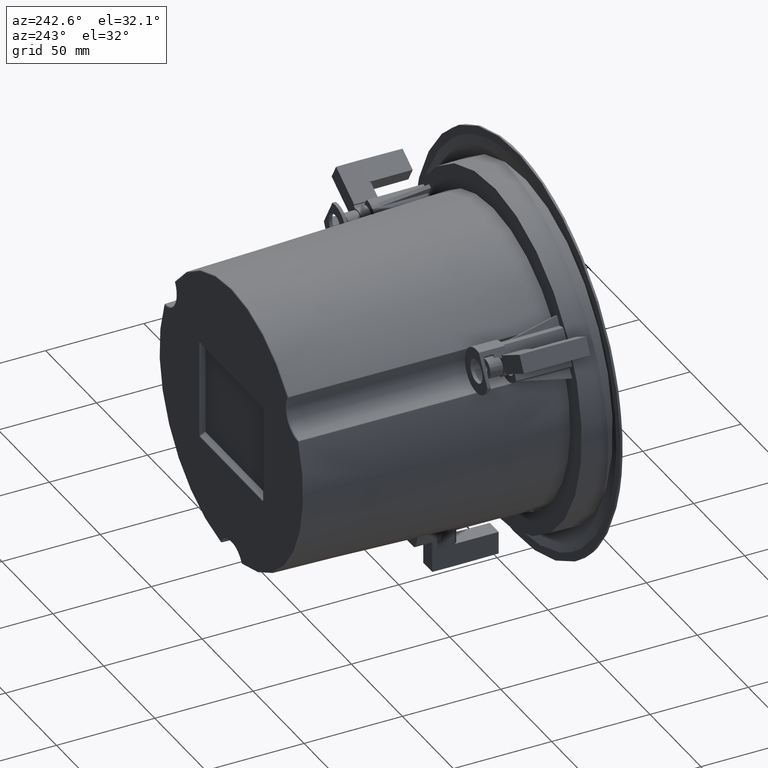
[diagram: clean part render]
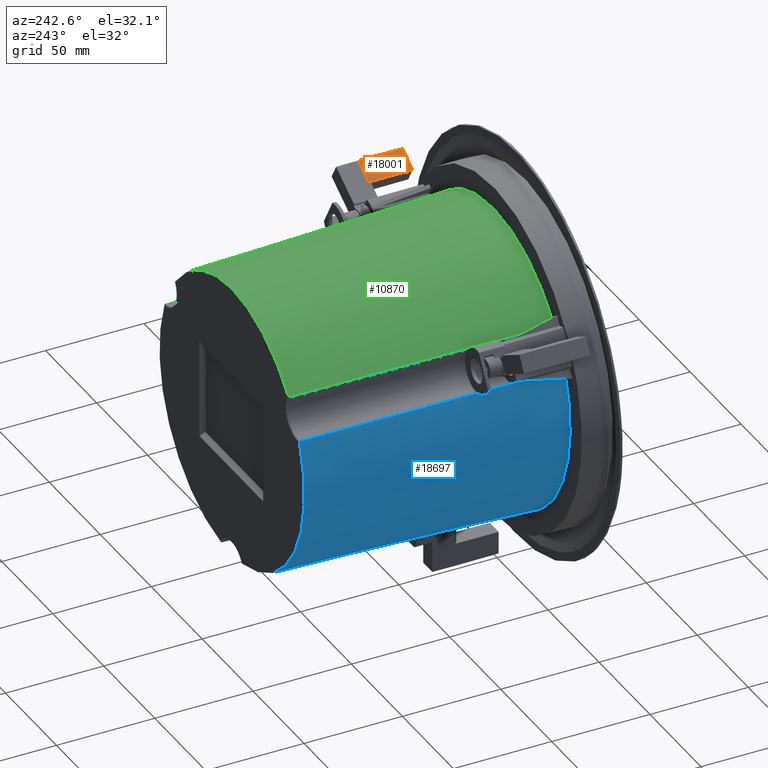
[diagram: same view with three faces highlighted in distinct colors, each labeled with its STEP entity id]
A machine part, auxiliary view with three faces highlighted in distinct colors.
Their STEP definitions:

[orange] entity #18001 — the highlighted planar face has unit normal (-0.5, -0.0052, 0.866).
#23 = CARTESIAN_POINT ( 'NONE',  ( 89.92047413900357355, 1.460808333557709782, 56.91859575542361682 ) ) ;
#482 = LINE ( 'NONE', #4769, #10765 ) ;
#1111 = ORIENTED_EDGE ( 'NONE', *, *, #9772, .T. ) ;
#1450 = CARTESIAN_POINT ( 'NONE',  ( 79.83090700857556499, 23.86080833355771347, 51.22881304684072035 ) ) ;
#2273 = VERTEX_POINT ( 'NONE', #1450 ) ;
#3995 = DIRECTION ( 'NONE',  ( -0.002617981915709285002, 0.9999862922474268556, 0.004534477691306077786 ) ) ;
#4294 = DIRECTION ( 'NONE',  ( 0.8660254037844363761, -5.718987256724337299E-16, 0.5000000000000041078 ) ) ;
#4527 = EDGE_CURVE ( 'NONE', #4533, #6518, #18668, .T. ) ;
#4533 = VERTEX_POINT ( 'NONE', #18386 ) ;
#4769 = CARTESIAN_POINT ( 'NONE',  ( 72.12328091489408166, 23.86080833355772413, 46.77881304684068198 ) ) ;
#5866 = VECTOR ( 'NONE', #9090, 1000.000000000000000 ) ;
#6518 = VERTEX_POINT ( 'NONE', #23 ) ;
#6543 = EDGE_CURVE ( 'NONE', #2273, #12376, #482, .T. ) ;
#6907 = DIRECTION ( 'NONE',  ( -0.4999931461237174801, -0.005235963831419518030, 0.8660135325224791458 ) ) ;
#6993 = CARTESIAN_POINT ( 'NONE',  ( 72.18192451367791307, 1.460808333557723104, 46.67723935420837478 ) ) ;
#7953 = LINE ( 'NONE', #15169, #5866 ) ;
#8376 = LINE ( 'NONE', #11127, #17038 ) ;
#8438 = ORIENTED_EDGE ( 'NONE', *, *, #6543, .F. ) ;
#9090 = DIRECTION ( 'NONE',  ( 0.007152361565568631299, -0.9999725850585454712, -0.001916469505459520448 ) ) ;
#9772 = EDGE_CURVE ( 'NONE', #2273, #4533, #7953, .T. ) ;
#10765 = VECTOR ( 'NONE', #15099, 1000.000000000000000 ) ;
#10984 = VECTOR ( 'NONE', #4294, 1000.000000000000000 ) ;
#11127 = CARTESIAN_POINT ( 'NONE',  ( 89.96340423285346333, 23.86080833355770991, 57.07881304684075729 ) ) ;
#12376 = VERTEX_POINT ( 'NONE', #15665 ) ;
#12692 = EDGE_CURVE ( 'NONE', #12376, #6518, #8376, .T. ) ;
#13183 = ORIENTED_EDGE ( 'NONE', *, *, #4527, .T. ) ;
#14245 = PLANE ( 'NONE',  #15387 ) ;
#15099 = DIRECTION ( 'NONE',  ( 0.8660254037844363761, -5.718987256724337299E-16, 0.5000000000000041078 ) ) ;
#15169 = CARTESIAN_POINT ( 'NONE',  ( 79.83090700857556499, 23.86080833355771702, 51.22881304684072035 ) ) ;
#15387 = AXIS2_PLACEMENT_3D ( 'NONE', #15853, #6907, #3995 ) ;
#15665 = CARTESIAN_POINT ( 'NONE',  ( 89.96340423285346333, 23.86080833355770991, 57.07881304684076440 ) ) ;
#15675 = EDGE_LOOP ( 'NONE', ( #1111, #13183, #16493, #8438 ) ) ;
#15853 = CARTESIAN_POINT ( 'NONE',  ( 72.12328091489408166, 23.86080833355772413, 46.77881304684068198 ) ) ;
#16493 = ORIENTED_EDGE ( 'NONE', *, *, #12692, .F. ) ;
#17038 = VECTOR ( 'NONE', #18583, 1000.000000000000114 ) ;
#18001 = ADVANCED_FACE ( 'NONE', ( #18316 ), #14245, .T. ) ;
#18316 = FACE_OUTER_BOUND ( 'NONE', #15675, .T. ) ;
#18386 = CARTESIAN_POINT ( 'NONE',  ( 79.99112429999193807, 1.460808333557719774, 51.18588295299213797 ) ) ;
#18583 = DIRECTION ( 'NONE',  ( -0.001916469505460558897, -0.9999725850585454712, -0.007152361565569213299 ) ) ;
#18668 = LINE ( 'NONE', #6993, #10984 ) ;

[blue] entity #18697 — the highlighted conical surface has half-angle 1.8 deg.
#541 = DIRECTION ( 'NONE',  ( -0.0000000000000000000, 1.000000000000000000, -0.0000000000000000000 ) ) ;
#593 = CARTESIAN_POINT ( 'NONE',  ( -10.38483639427518845, 48.37264406580361253, -72.74241341081700796 ) ) ;
#821 = CARTESIAN_POINT ( 'NONE',  ( -10.37227572093547856, 134.7157053795210970, -70.00212585520094422 ) ) ;
#1178 = CARTESIAN_POINT ( 'NONE',  ( -10.39137416978184625, -3.630476725346300122E-21, -74.27664062475702167 ) ) ;
#1318 = DIRECTION ( 'NONE',  ( 0.0000000000000000000, 0.0000000000000000000, -1.000000000000000000 ) ) ;
#1540 = FACE_OUTER_BOUND ( 'NONE', #11679, .T. ) ;
#1589 = ORIENTED_EDGE ( 'NONE', *, *, #2006, .T. ) ;
#2006 = EDGE_CURVE ( 'NONE', #13940, #15427, #2973, .T. ) ;
#2747 = CARTESIAN_POINT ( 'NONE',  ( -69.52114477369859458, 3.049318610115481221E-15, 28.13912630111599000 ) ) ;
#2973 = B_SPLINE_CURVE_WITH_KNOTS ( 'NONE', 3,
 ( #13370, #17833, #4789, #9218, #13572, #593, #15584, #11029, #3718, #1178 ),
 .UNSPECIFIED., .F., .F.,
 ( 4, 3, 3, 4 ),
 ( 0.0004845386201293724556, 0.02369211120822686811, 0.1184605560568769839, 0.1352680432513710673 ),
 .UNSPECIFIED. ) ;
#3132 = CIRCLE ( 'NONE', #6718, 70.76638840493770033 ) ;
#3305 = AXIS2_PLACEMENT_3D ( 'NONE', #5614, #13013, #4231 ) ;
#3718 = CARTESIAN_POINT ( 'NONE',  ( -10.39062638552442230, 5.599680436877828349, -74.09905440242593500 ) ) ;
#4162 = CARTESIAN_POINT ( 'NONE',  ( -67.12794516048134597, 86.89460694866396295, 26.77125560708129370 ) ) ;
#4231 = DIRECTION ( 'NONE',  ( 0.0000000000000000000, 0.0000000000000000000, -1.000000000000000000 ) ) ;
#4254 = CARTESIAN_POINT ( 'NONE',  ( -66.25697208034735297, 118.4926254334993416, 26.27380974617924281 ) ) ;
#4789 = CARTESIAN_POINT ( 'NONE',  ( -10.37459072870471743, 119.2517806269445657, -70.49303597741877070 ) ) ;
#5614 = CARTESIAN_POINT ( 'NONE',  ( 0.0000000000000000000, -7.646661082105765672E-11, 0.0000000000000000000 ) ) ;
#6718 = AXIS2_PLACEMENT_3D ( 'NONE', #9954, #11390, #1318 ) ;
#7259 = EDGE_CURVE ( 'NONE', #8618, #14556, #9002, .T. ) ;
#7299 = ORIENTED_EDGE ( 'NONE', *, *, #7259, .T. ) ;
#7874 = CARTESIAN_POINT ( 'NONE',  ( -65.80975716998570135, 134.7157053795211255, 26.01840865821768745 ) ) ;
#8133 = CARTESIAN_POINT ( 'NONE',  ( 0.0000000000000000000, -7.660538869913580129E-11, 0.0000000000000000000 ) ) ;
#8490 = CARTESIAN_POINT ( 'NONE',  ( -65.80975716998570135, 134.7157053795211255, 26.01840865821768745 ) ) ;
#8618 = VERTEX_POINT ( 'NONE', #16549 ) ;
#9002 = B_SPLINE_CURVE_WITH_KNOTS ( 'NONE', 3,
 ( #2747, #11352, #17278, #14382, #9819, #4162, #4254, #18615, #11528, #8490 ),
 .UNSPECIFIED., .F., .F.,
 ( 4, 3, 3, 4 ),
 ( 7.664684436823010424E-14, 0.02371045044714055125, 0.1185522522507580223, 0.1347835046307280238 ),
 .UNSPECIFIED. ) ;
#9218 = CARTESIAN_POINT ( 'NONE',  ( -10.37573010747689395, 111.5198171207610329, -70.73845552739061304 ) ) ;
#9819 = CARTESIAN_POINT ( 'NONE',  ( -67.99847603951312180, 55.29657591161651453, 27.26867854535667135 ) ) ;
#9954 = CARTESIAN_POINT ( 'NONE',  ( 0.0000000000000000000, 134.7157053795210970, 0.0000000000000000000 ) ) ;
#10645 = EDGE_CURVE ( 'NONE', #15427, #8618, #18375, .T. ) ;
#10816 = ORIENTED_EDGE ( 'NONE', *, *, #14839, .T. ) ;
#11029 = CARTESIAN_POINT ( 'NONE',  ( -10.38987318851230413, 11.19936053275896093, -73.92145744767636018 ) ) ;
#11352 = CARTESIAN_POINT ( 'NONE',  ( -69.30365869799280176, 7.899511924794109241, 28.01477875608741286 ) ) ;
#11390 = DIRECTION ( 'NONE',  ( 0.0000000000000000000, -1.000000000000000000, 0.0000000000000000000 ) ) ;
#11528 = CARTESIAN_POINT ( 'NONE',  ( -65.95884195872416456, 129.3080124373680917, 26.10354302860464770 ) ) ;
#11679 = EDGE_LOOP ( 'NONE', ( #7299, #10816, #1589, #18766 ) ) ;
#12207 = DIRECTION ( 'NONE',  ( 0.0000000000000000000, 0.0000000000000000000, -1.000000000000000000 ) ) ;
#12684 = CONICAL_SURFACE ( 'NONE', #3305, 74.99999999757383762, 0.03141592649999994102 ) ;
#13013 = DIRECTION ( 'NONE',  ( 0.0000000000000000000, -1.000000000000000000, 0.0000000000000000000 ) ) ;
#13370 = CARTESIAN_POINT ( 'NONE',  ( -10.37227572093547856, 134.7157053795210970, -70.00212585520094422 ) ) ;
#13572 = CARTESIAN_POINT ( 'NONE',  ( -10.38038277651040708, 79.94623680489354456, -71.74062966671799302 ) ) ;
#13729 = CARTESIAN_POINT ( 'NONE',  ( -10.39137416978184625, -3.630476725346300122E-21, -74.27664062475702167 ) ) ;
#13940 = VERTEX_POINT ( 'NONE', #821 ) ;
#14381 = AXIS2_PLACEMENT_3D ( 'NONE', #8133, #541, #12207 ) ;
#14382 = CARTESIAN_POINT ( 'NONE',  ( -68.86861420025172720, 23.69853371857227842, 27.76607959749446053 ) ) ;
#14556 = VERTEX_POINT ( 'NONE', #7874 ) ;
#14839 = EDGE_CURVE ( 'NONE', #14556, #13940, #3132, .T. ) ;
#15427 = VERTEX_POINT ( 'NONE', #13729 ) ;
#15584 = CARTESIAN_POINT ( 'NONE',  ( -10.38911445987703708, 16.79904028055898024, -73.74384954255017988 ) ) ;
#16549 = CARTESIAN_POINT ( 'NONE',  ( -69.52114477369859458, 3.049318610115481221E-15, 28.13912630111599000 ) ) ;
#17278 = CARTESIAN_POINT ( 'NONE',  ( -69.08614874041910525, 15.79902317093856468, 27.89042986051903128 ) ) ;
#17833 = CARTESIAN_POINT ( 'NONE',  ( -10.37343939421314154, 126.9837433872995121, -70.24759298406242181 ) ) ;
#18375 = CIRCLE ( 'NONE', #14381, 74.99999999757383762 ) ;
#18615 = CARTESIAN_POINT ( 'NONE',  ( -66.10791350478032768, 123.9003191194688895, 26.18867672296758897 ) ) ;
#18697 = ADVANCED_FACE ( 'NONE', ( #1540 ), #12684, .T. ) ;
#18766 = ORIENTED_EDGE ( 'NONE', *, *, #10645, .T. ) ;

[green] entity #10870 — the highlighted conical surface has half-angle 1.8 deg.
#439 = CARTESIAN_POINT ( 'NONE',  ( -58.66948984703569181, 16.79904027073184025, 45.86916181651110236 ) ) ;
#626 = CARTESIAN_POINT ( 'NONE',  ( -55.43748144905487862, 134.7157053795210970, 43.98371719698321414 ) ) ;
#855 = DIRECTION ( 'NONE',  ( 0.0000000000000000000, -1.000000000000000000, 0.0000000000000000000 ) ) ;
#954 = CARTESIAN_POINT ( 'NONE',  ( 59.12977060391515494, 3.113693114106808046E-15, 46.13751432364001204 ) ) ;
#1494 = CARTESIAN_POINT ( 'NONE',  ( 0.0000000000000000000, -7.660538869913580129E-11, 0.0000000000000000000 ) ) ;
#1572 = DIRECTION ( 'NONE',  ( 0.0000000000000000000, -1.000000000000000000, 0.0000000000000000000 ) ) ;
#1738 = ORIENTED_EDGE ( 'NONE', *, *, #17202, .T. ) ;
#1849 = ORIENTED_EDGE ( 'NONE', *, *, #3024, .F. ) ;
#1878 = CARTESIAN_POINT ( 'NONE',  ( -55.86146458202111376, 119.2517806256343960, 44.23117711365195959 ) ) ;
#1976 = CARTESIAN_POINT ( 'NONE',  ( -56.93901638674105214, 79.94623680030768753, 44.85999001889523186 ) ) ;
#2167 = CARTESIAN_POINT ( 'NONE',  ( -56.07343445751369160, 111.5198171187957854, 44.35487361960991848 ) ) ;
#2562 = VERTEX_POINT ( 'NONE', #3349 ) ;
#2586 = DIRECTION ( 'NONE',  ( 0.0000000000000000000, 0.0000000000000000000, -1.000000000000000000 ) ) ;
#2843 = EDGE_CURVE ( 'NONE', #3911, #5283, #9726, .T. ) ;
#3024 = EDGE_CURVE ( 'NONE', #14518, #5283, #9890, .T. ) ;
#3349 = CARTESIAN_POINT ( 'NONE',  ( 55.43748144905185171, 134.7157053795211255, 43.98371719698701554 ) ) ;
#3460 = CARTESIAN_POINT ( 'NONE',  ( -55.43748144905487862, 134.7157053795210970, 43.98371719698321414 ) ) ;
#3586 = CARTESIAN_POINT ( 'NONE',  ( -57.80435974941798349, 48.37264405859711047, 45.36473883711029487 ) ) ;
#3911 = VERTEX_POINT ( 'NONE', #3460 ) ;
#4579 = AXIS2_PLACEMENT_3D ( 'NONE', #13738, #855, #2586 ) ;
#4630 = CARTESIAN_POINT ( 'NONE',  ( -59.12977060391393280, 1.183812637117649836E-20, 46.13751432364158234 ) ) ;
#4904 = CARTESIAN_POINT ( 'NONE',  ( -55.64948038182175338, 126.9837433866444201, 44.10745853204502964 ) ) ;
#5283 = VERTEX_POINT ( 'NONE', #6861 ) ;
#6306 = EDGE_LOOP ( 'NONE', ( #1738, #12894, #12060, #1849 ) ) ;
#6654 = DIRECTION ( 'NONE',  ( 0.0000000000000000000, -1.000000000000000000, 0.0000000000000000000 ) ) ;
#6861 = CARTESIAN_POINT ( 'NONE',  ( -59.12977060391393280, 1.183812637117649836E-20, 46.13751432364158234 ) ) ;
#6889 = CARTESIAN_POINT ( 'NONE',  ( 59.12977060391515494, 3.113693114106808046E-15, 46.13751432364001204 ) ) ;
#6971 = CARTESIAN_POINT ( 'NONE',  ( 58.91333943317508925, 7.899511924564195375, 46.01133962962799728 ) ) ;
#7172 = CARTESIAN_POINT ( 'NONE',  ( 55.58575237094347443, 129.3080124362185472, 44.07026122617656938 ) ) ;
#7555 = CARTESIAN_POINT ( 'NONE',  ( -58.97635031623192958, 5.599680433602113538, 46.04807361236439789 ) ) ;
#8076 = AXIS2_PLACEMENT_3D ( 'NONE', #1494, #1572, #11733 ) ;
#8321 = AXIS2_PLACEMENT_3D ( 'NONE', #17661, #6654, #9507 ) ;
#8335 = CARTESIAN_POINT ( 'NONE',  ( 57.61460636771037969, 55.29657591000713523, 45.25406839619430599 ) ) ;
#9507 = DIRECTION ( 'NONE',  ( 0.0000000000000000000, 0.0000000000000000000, -1.000000000000000000 ) ) ;
#9726 = B_SPLINE_CURVE_WITH_KNOTS ( 'NONE', 3,
 ( #626, #4904, #1878, #2167, #1976, #3586, #439, #16328, #7555, #4630 ),
 .UNSPECIFIED., .F., .F.,
 ( 4, 3, 3, 4 ),
 ( 0.0004845386201295945002, 0.02369211121019332289, 0.1184605560667091884, 0.1352680432513711783 ),
 .UNSPECIFIED. ) ;
#9890 = CIRCLE ( 'NONE', #8076, 74.99999999757383762 ) ;
#10591 = B_SPLINE_CURVE_WITH_KNOTS ( 'NONE', 3,
 ( #6889, #6971, #11379, #14233, #8335, #18751, #12696, #12782, #7172, #15749 ),
 .UNSPECIFIED., .F., .F.,
 ( 4, 3, 3, 4 ),
 ( 7.664683000602171912E-14, 0.02371045044645046784, 0.1185522522473075879, 0.1347835046307279960 ),
 .UNSPECIFIED. ) ;
#10870 = ADVANCED_FACE ( 'NONE', ( #12094 ), #14093, .T. ) ;
#11379 = CARTESIAN_POINT ( 'NONE',  ( 58.69689515189952544, 15.79902317047873694, 45.88514492858131888 ) ) ;
#11733 = DIRECTION ( 'NONE',  ( 0.0000000000000000000, 0.0000000000000000000, -1.000000000000000000 ) ) ;
#12060 = ORIENTED_EDGE ( 'NONE', *, *, #2843, .T. ) ;
#12094 = FACE_OUTER_BOUND ( 'NONE', #6306, .T. ) ;
#12139 = CIRCLE ( 'NONE', #4579, 70.76638840493770033 ) ;
#12696 = CARTESIAN_POINT ( 'NONE',  ( 55.88227273465746237, 118.4926254300506798, 44.24331612638411571 ) ) ;
#12782 = CARTESIAN_POINT ( 'NONE',  ( 55.73401608603984414, 123.9003191171697864, 44.15679412487900635 ) ) ;
#12838 = EDGE_CURVE ( 'NONE', #2562, #3911, #12139, .T. ) ;
#12894 = ORIENTED_EDGE ( 'NONE', *, *, #12838, .T. ) ;
#13738 = CARTESIAN_POINT ( 'NONE',  ( 0.0000000000000000000, 134.7157053795210970, 0.0000000000000000000 ) ) ;
#14093 = CONICAL_SURFACE ( 'NONE', #8321, 74.99999999757383762, 0.03141592649999993409 ) ;
#14233 = CARTESIAN_POINT ( 'NONE',  ( 58.48043739507544814, 23.69853371788254037, 45.75892962211193549 ) ) ;
#14518 = VERTEX_POINT ( 'NONE', #954 ) ;
#15749 = CARTESIAN_POINT ( 'NONE',  ( 55.43748144905185171, 134.7157053795211255, 43.98371719698701554 ) ) ;
#16328 = CARTESIAN_POINT ( 'NONE',  ( -58.82292344038020104, 11.19936052620753486, 45.95862284729495428 ) ) ;
#17202 = EDGE_CURVE ( 'NONE', #14518, #2562, #10591, .T. ) ;
#17661 = CARTESIAN_POINT ( 'NONE',  ( 0.0000000000000000000, -7.643885524544202781E-11, 0.0000000000000000000 ) ) ;
#18751 = CARTESIAN_POINT ( 'NONE',  ( 56.74856002724975923, 86.89460694613494240, 44.74887800932432924 ) ) ;